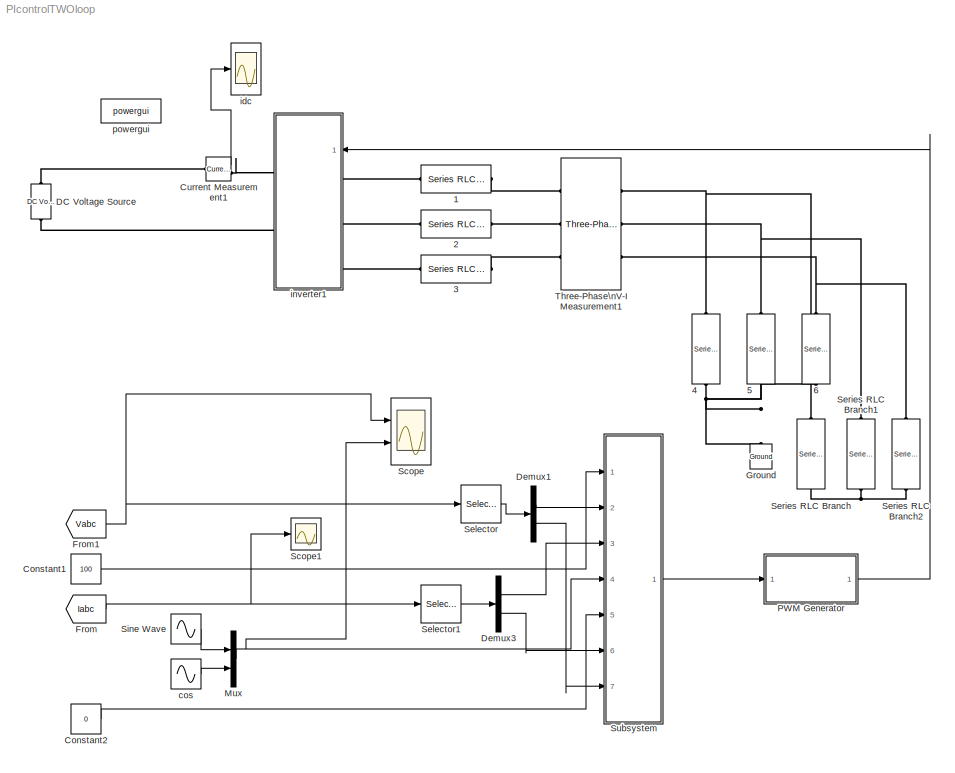
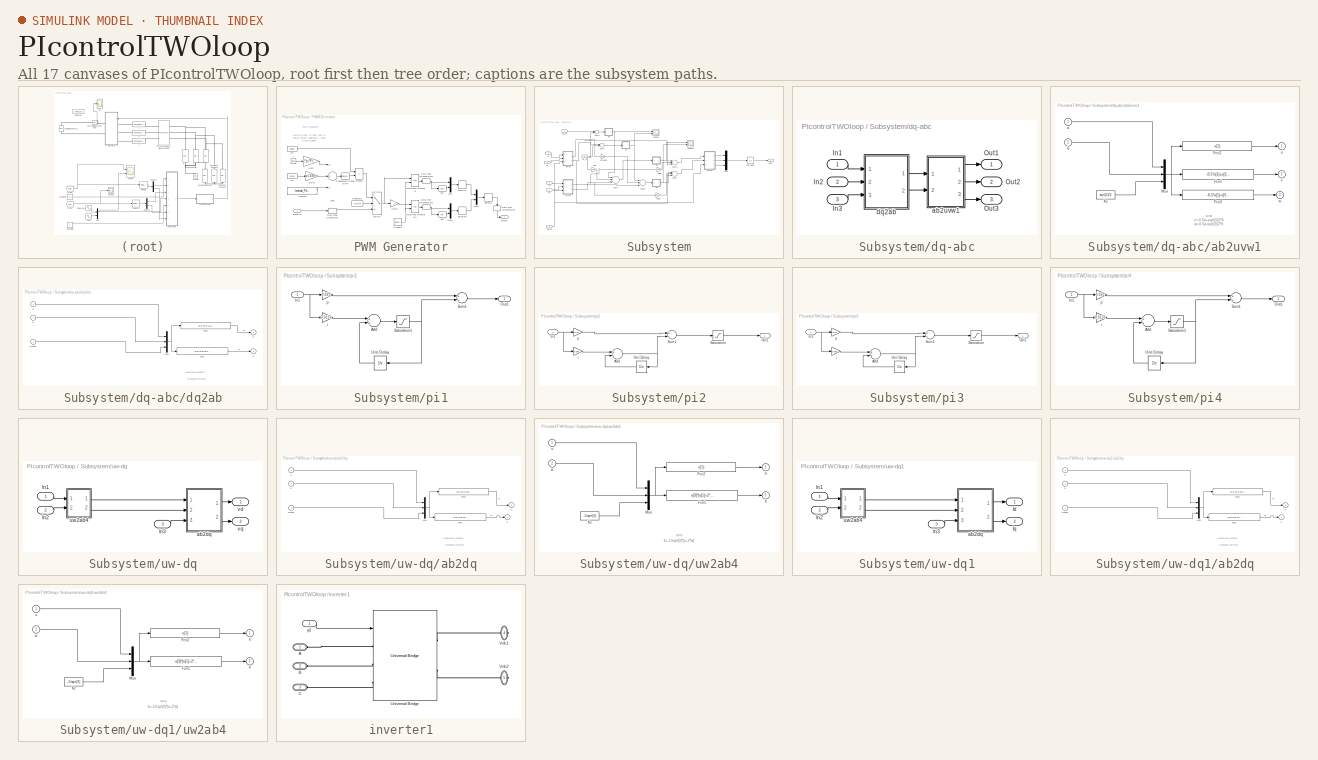
[diagram: thumbnail index - all 17 canvases of the model, root first then tree order]
MODEL PIcontrolTWOloop
KIND model
BLOCK [Reference] 1  REF=powerlib/Elements/Series RLC Branch
  BranchType = L
  Capacitance = 1e-6
  Inductance = 2.7e-3
  InitialCurrent = 0
  InitialVoltage = 0
  LConnTagsString = __new0
  Measurements = None
  Ports = [0, 0, 0, 0, 0, 1, 1]
  RConnTagsString = __new0
  Resistance = 1.0
  SID = 1
  SetiL0 = off
  Setx0 = off
  SourceBlock = powerlib/Elements/Series RLC Branch
  SourceType = Series RLC Branch
BLOCK [Reference] 2  REF=powerlib/Elements/Series RLC Branch
  BranchType = L
  Capacitance = 1e-6
  Inductance = 2.7e-3
  InitialCurrent = 0
  InitialVoltage = 0
  LConnTagsString = __new0
  Measurements = None
  Ports = [0, 0, 0, 0, 0, 1, 1]
  RConnTagsString = __new0
  Resistance = 1.0
  SID = 2
  SetiL0 = off
  Setx0 = off
  SourceBlock = powerlib/Elements/Series RLC Branch
  SourceType = Series RLC Branch
BLOCK [Reference] 3  REF=powerlib/Elements/Series RLC Branch
  BranchType = L
  Capacitance = 1e-6
  Inductance = 2.7e-3
  InitialCurrent = 0
  InitialVoltage = 0
  LConnTagsString = __new0
  Measurements = None
  Ports = [0, 0, 0, 0, 0, 1, 1]
  RConnTagsString = __new0
  Resistance = 1.0
  SID = 3
  SetiL0 = off
  Setx0 = off
  SourceBlock = powerlib/Elements/Series RLC Branch
  SourceType = Series RLC Branch
BLOCK [Reference] 4  REF=powerlib/Elements/Series RLC Branch
  BranchType = C
  Capacitance = 15e-6
  Inductance = 8e-3
  InitialCurrent = 0
  InitialVoltage = 0
  LConnTagsString = __new0
  Measurements = None
  Ports = [0, 0, 0, 0, 0, 1, 1]
  RConnTagsString = __new0
  Resistance = 0.5
  SID = 4
  SetiL0 = off
  Setx0 = off
  SourceBlock = powerlib/Elements/Series RLC Branch
  SourceType = Series RLC Branch
BLOCK [Reference] 5  REF=powerlib/Elements/Series RLC Branch
  BranchType = C
  Capacitance = 15e-6
  Inductance = 8e-3
  InitialCurrent = 0
  InitialVoltage = 0
  LConnTagsString = __new0
  Measurements = None
  Ports = [0, 0, 0, 0, 0, 1, 1]
  RConnTagsString = __new0
  Resistance = 0.5
  SID = 5
  SetiL0 = off
  Setx0 = off
  SourceBlock = powerlib/Elements/Series RLC Branch
  SourceType = Series RLC Branch
BLOCK [Reference] 6  REF=powerlib/Elements/Series RLC Branch
  BranchType = C
  Capacitance = 15e-6
  Inductance = 8e-3
  InitialCurrent = 0
  InitialVoltage = 0
  LConnTagsString = __new0
  Measurements = None
  Ports = [0, 0, 0, 0, 0, 1, 1]
  RConnTagsString = __new0
  Resistance = 0.5
  SID = 6
  SetiL0 = off
  Setx0 = off
  SourceBlock = powerlib/Elements/Series RLC Branch
  SourceType = Series RLC Branch
BLOCK [Constant] Constant1
  OutDataTypeStr = single
  SID = 7
  SampleTime = 1e-4
  Value = 100
BLOCK [Constant] Constant2
  OutDataTypeStr = single
  SID = 8
  SampleTime = 1e-4
  Value = 0
BLOCK [Reference] Current Measurement1  REF=powerlib/Measurements/Current Measurement
  OutputType = Complex
  PSBequivalent = 0
  PhasorSimulation = off
  Ports = [0, 1, 0, 0, 0, 1, 1]
  SID = 9
  SourceBlock = powerlib/Measurements/Current Measurement
  SourceType = Current Measurement
BLOCK [Reference] DC Voltage Source  REF=powerlib/Electrical\nSources/DC Voltage Source
  Amplitude = 520
  Measurements = None
  Ports = [0, 0, 0, 0, 0, 1, 1]
  SID = 10
  SourceBlock = powerlib/Electrical\nSources/DC Voltage Source
  SourceType = DC Voltage Source
BLOCK [Demux] Demux1
  DisplayOption = bar
  Outputs = 2
  Ports = [1, 2]
  SID = 11
BLOCK [Demux] Demux3
  DisplayOption = bar
  Outputs = 2
  Ports = [1, 2]
  SID = 12
BLOCK [From] From
  GotoTag = Iabc
  IconDisplay = Tag and signal name
  SID = 13
  TagVisibility = global
BLOCK [From] From1
  GotoTag = Vabc
  IconDisplay = Tag and signal name
  SID = 14
  TagVisibility = global
BLOCK [Reference] Ground  REF=powerlib/Elements/Ground
  LConnTagsString = a
  Ports = [0, 0, 0, 0, 0, 1]
  SID = 15
  SourceBlock = powerlib/Elements/Ground
  SourceType = Ground
BLOCK [Mux] Mux
  DisplayOption = bar
  Inputs = 2
  Ports = [2, 1]
  SID = 16
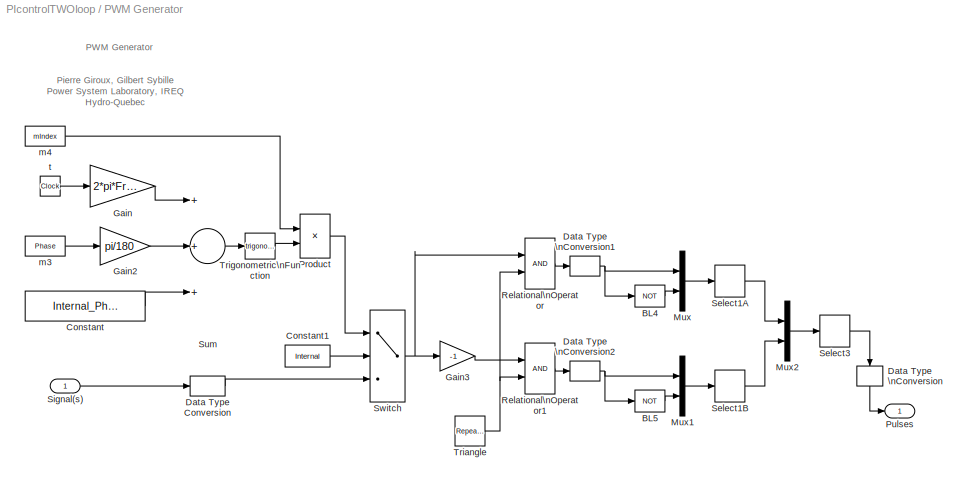
BLOCK [SubSystem] PWM Generator
  AncestorBlock = powerlib_extras/Control \nBlocks/PWM Generator
  DialogController = POWERSYS.PowerSysDialog
  FunctionWithSeparateData = off
  MaskCallbackString = |||||
  MaskDescription = This block generates pulses for carrier-based PWM (Pulse Width Modulation), self-commutated IGBTs,GTOs or FETs bridges.\n\nDepending on the number of bridge arms selected in the \"Generator Mode\" parameter, the block can be used either for single-phase or three-phase PWM control.\n
  MaskDisplay = disp('')
  MaskEnableString = on,on,on,on,on,on
  MaskHelp = web(psbhelp)
  MaskHideContents = off
  MaskIconFrame = on
  MaskIconOpaque = off
  MaskIconRotate = none
  MaskIconUnits = autoscale
  MaskInitialization = powericon('psbcallbacks',gcb,'PWM Generator');\nif Freq==0\n    Phase=90;\nend\nswitch GeneratorMode\ncase 1,\n    Internal_Phase=0;\n   Signal_PortWidth=1;\n   Select1_Elements=[1 2];\n   Select1_PortWidth=2;\n   Select3_Elements=[1 2];\n   Select3_PortWidth=4;\ncase 2,\n    Internal_Phase=0;\n    Signal_PortWidth=1;\n    Select1_Elements=[1 2];\n    Select1_PortWidth=2;\n    Select3_Elements=[1 ...<+470ch>
  MaskPortRotate = default
  MaskPromptString = Generator Mode|Carrier frequency (Hz):|Internal generation of modulating signal(s)|Modulation index  (0<m<1) :|Frequency of output voltage (Hz)|Phase of output voltage (degrees)
  MaskSelfModifiable = on
  MaskStyleString = popup(1-arm  bridge (2 pulses)|2-arm  bridge (4 pulses)|3-arm  bridge (6 pulses)|Double 3-arm  bridges (12 pulses)),edit,checkbox,edit,edit,edit
  MaskToolTipString = on,on,on,on,on,on
  MaskTunableValueString = on,on,on,on,on,on
  MaskType = PWM Generator
  MaskValueString = 3-arm  bridge (6 pulses)|10000|off|0.4|60|0
  MaskVariables = GeneratorMode=@1;Fc=@2;Internal=@3;mIndex=@4;Freq=@5;Phase=@6;
  MaskVisibilityString = on,on,on,off,off,off
  MinAlgLoopOccurrences = off
  Opaque = off
  Ports = [1, 1]
  PropExecContextOutsideSubsystem = off
  RTWSystemCode = Auto
  RequestExecContextInheritance = off
  SID = 336
BLOCK [Logic] PWM Generator/BL4
  Inputs = 1
  Operator = NOT
  Ports = [1, 1]
  SID = 336:2
BLOCK [Logic] PWM Generator/BL5
  Inputs = 1
  Operator = NOT
  Ports = [1, 1]
  SID = 336:3
BLOCK [Constant] PWM Generator/Constant
  SID = 336:4
  Value = Internal_Phase
BLOCK [Constant] PWM Generator/Constant1
  SID = 336:5
  Value = Internal
BLOCK [DataTypeConversion] PWM Generator/Data Type Conversion
  OutDataTypeStr = double
  RndMeth = Floor
  SID = 336:29
  SaturateOnIntegerOverflow = off
BLOCK [DataTypeConversion] PWM Generator/Data Type \nConversion
  OutDataTypeStr = double
  SID = 336:6
BLOCK [DataTypeConversion] PWM Generator/Data Type \nConversion1
  OutDataTypeStr = boolean
  SID = 336:7
BLOCK [DataTypeConversion] PWM Generator/Data Type \nConversion2
  OutDataTypeStr = boolean
  SID = 336:8
BLOCK [Gain] PWM Generator/Gain
  Gain = 2*pi*Freq
  SID = 336:9
BLOCK [Gain] PWM Generator/Gain2
  Gain = pi/180
  SID = 336:10
BLOCK [Gain] PWM Generator/Gain3
  Gain = -1
  SID = 336:11
BLOCK [Mux] PWM Generator/Mux
  DisplayOption = bar
  Inputs = 2
  Ports = [2, 1]
  SID = 336:12
BLOCK [Mux] PWM Generator/Mux1
  DisplayOption = bar
  Inputs = 2
  Ports = [2, 1]
  SID = 336:13
BLOCK [Mux] PWM Generator/Mux2
  DisplayOption = bar
  Inputs = 2
  Ports = [2, 1]
  SID = 336:14
BLOCK [Product] PWM Generator/Product
  Ports = [2, 1]
  RndMeth = Floor
  SID = 336:15
BLOCK [Outport] PWM Generator/Pulses
  IconDisplay = Port number
  SID = 336:28
BLOCK [RelationalOperator] PWM Generator/Relational\nOperator
  Ports = [2, 1]
  SID = 336:16
BLOCK [RelationalOperator] PWM Generator/Relational\nOperator1
  Ports = [2, 1]
  SID = 336:17
BLOCK [Selector] PWM Generator/Select1A
  IndexOptions = Index vector (dialog)
  Indices = Select1_Elements
  InputPortWidth = Select1_PortWidth
  OutputSizes = 1
  Ports = [1, 1]
  SID = 336:18
BLOCK [Selector] PWM Generator/Select1B
  IndexOptions = Index vector (dialog)
  Indices = Select1_Elements
  InputPortWidth = Select1_PortWidth
  OutputSizes = 1
  Ports = [1, 1]
  SID = 336:19
BLOCK [Selector] PWM Generator/Select3
  IndexOptions = Index vector (dialog)
  Indices = Select3_Elements
  InputPortWidth = Select3_PortWidth
  OutputSizes = 1
  Ports = [1, 1]
  SID = 336:20
BLOCK [Inport] PWM Generator/Signal(s)
  IconDisplay = Port number
  SID = 336:1
BLOCK [Sum] PWM Generator/Sum
  Inputs = +++
  Ports = [3, 1]
  SID = 336:21
BLOCK [Switch] PWM Generator/Switch
  SID = 336:22
  SaturateOnIntegerOverflow = off
  Threshold = 0.5
BLOCK [Reference] PWM Generator/Triangle  REF=simulink/Sources/Repeating\nSequence
  Ports = [0, 1]
  SID = 336:23
  SourceBlock = simulink/Sources/Repeating\nSequence
  SourceType = Repeating table
  rep_seq_t = [0 1/Fc/4 3/Fc/4 1/Fc]
  rep_seq_y = [0 -260 260 0]
BLOCK [Trigonometry] PWM Generator/Trigonometric\nFunction
  Ports = [1, 1]
  SID = 336:24
BLOCK [Constant] PWM Generator/m3
  SID = 336:25
  Value = Phase
BLOCK [Constant] PWM Generator/m4
  SID = 336:26
  Value = mIndex
BLOCK [Clock] PWM Generator/t
  SID = 336:27
BLOCK [Scope] Scope
  DataFormat = StructureWithTime
  Floating = off
  LimitDataPoints = off
  NumInputPorts = 2
  Ports = [2]
  SID = 18
  SampleTime = 0
  SaveToWorkspace = on
  ShowLegends = off
  TimeRange = 0.1
  YMax = 110~1.25
  YMin = -110~-1.25
  ZoomMode = xonly
BLOCK [Scope] Scope1
  DataFormat = StructureWithTime
  Floating = off
  LimitDataPoints = off
  NumInputPorts = 1
  Ports = [1]
  SID = 19
  SampleTime = 0
  SaveName = ScopeData1
  SaveToWorkspace = on
  ShowLegends = off
  TimeRange = 0.1
  YMax = 1.5
  YMin = -1.75
  ZoomMode = xonly
BLOCK [Selector] Selector
  IndexOptions = Index vector (dialog)
  Indices = [1 3]
  InputPortWidth = 3
  OutputSizes = 1
  Ports = [1, 1]
  SID = 20
BLOCK [Selector] Selector1
  IndexOptions = Index vector (dialog)
  Indices = [1 3]
  InputPortWidth = 3
  OutputSizes = 1
  Ports = [1, 1]
  SID = 21
BLOCK [Reference] Series RLC Branch  REF=powerlib/Elements/Series RLC Branch
  BranchType = R
  Capacitance = 1e-6
  Inductance = 1e-3
  InitialCurrent = 0
  InitialVoltage = 0
  LConnTagsString = __new0
  Measurements = None
  Ports = [0, 0, 0, 0, 0, 1, 1]
  RConnTagsString = __new0
  Resistance = 12
  SID = 22
  SetiL0 = off
  Setx0 = off
  SourceBlock = powerlib/Elements/Series RLC Branch
  SourceType = Series RLC Branch
BLOCK [Reference] Series RLC Branch1  REF=powerlib/Elements/Series RLC Branch
  BranchType = R
  Capacitance = 1e-6
  Inductance = 1e-3
  InitialCurrent = 0
  InitialVoltage = 0
  LConnTagsString = __new0
  Measurements = None
  Ports = [0, 0, 0, 0, 0, 1, 1]
  RConnTagsString = __new0
  Resistance = 12
  SID = 23
  SetiL0 = off
  Setx0 = off
  SourceBlock = powerlib/Elements/Series RLC Branch
  SourceType = Series RLC Branch
BLOCK [Reference] Series RLC Branch2  REF=powerlib/Elements/Series RLC Branch
  BranchType = R
  Capacitance = 1e-6
  Inductance = 1e-3
  InitialCurrent = 0
  InitialVoltage = 0
  LConnTagsString = __new0
  Measurements = None
  Ports = [0, 0, 0, 0, 0, 1, 1]
  RConnTagsString = __new0
  Resistance = 12
  SID = 24
  SetiL0 = off
  Setx0 = off
  SourceBlock = powerlib/Elements/Series RLC Branch
  SourceType = Series RLC Branch
BLOCK [Sin] Sine Wave
  Frequency = 2*pi*50
  Ports = [0, 1]
  SID = 25
  SampleTime = 1e-4
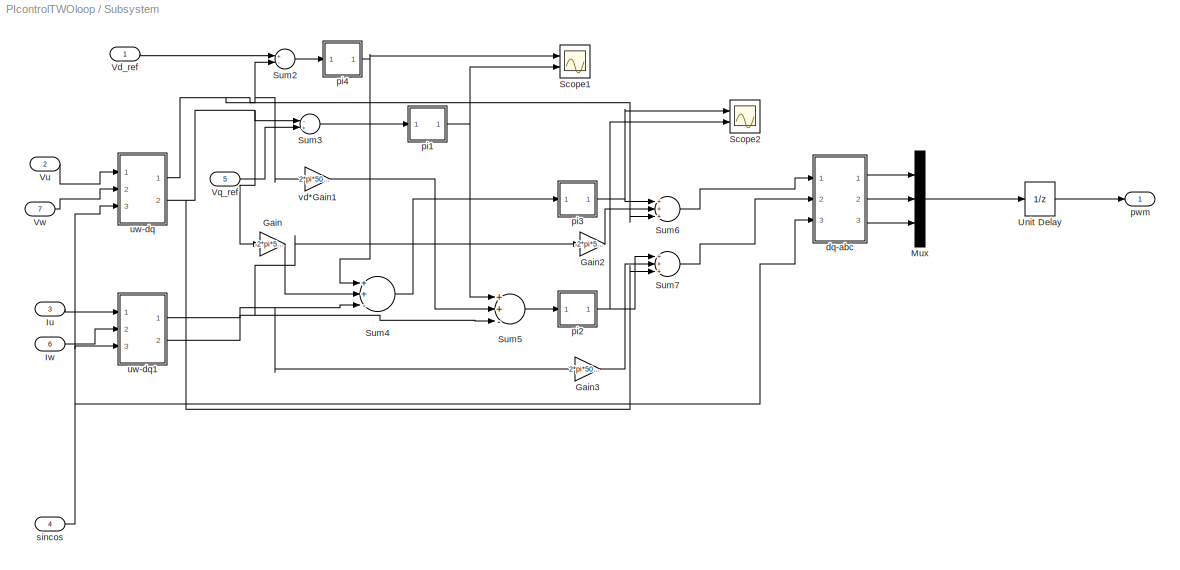
BLOCK [SubSystem] Subsystem
  FunctionWithSeparateData = off
  MaskHideContents = off
  MinAlgLoopOccurrences = off
  Opaque = off
  Ports = [7, 1]
  PropExecContextOutsideSubsystem = off
  RTWSystemCode = Auto
  RequestExecContextInheritance = off
  SID = 26
BLOCK [Gain] Subsystem/Gain
  Gain = -2*pi*50*15e-6
  OutDataTypeStr = Inherit: Inherit via internal rule
  ParamDataTypeStr = Inherit: Inherit via internal rule
  SID = 34
  SaturateOnIntegerOverflow = off
BLOCK [Gain] Subsystem/Gain2
  Gain = -2*pi*50*2.7e-3
  OutDataTypeStr = Inherit: Inherit via internal rule
  ParamDataTypeStr = Inherit: Inherit via internal rule
  SID = 36
  SaturateOnIntegerOverflow = off
BLOCK [Gain] Subsystem/Gain3
  Gain = 2*pi*50*2.7e-3
  OutDataTypeStr = Inherit: Inherit via internal rule
  ParamDataTypeStr = Inherit: Inherit via internal rule
  SID = 37
  SaturateOnIntegerOverflow = off
BLOCK [Inport] Subsystem/Iu
  IconDisplay = Port number
  Port = 3
  SID = 29
BLOCK [Inport] Subsystem/Iw
  IconDisplay = Port number
  Port = 6
  SID = 32
BLOCK [Mux] Subsystem/Mux
  DisplayOption = bar
  Inputs = 3
  Ports = [3, 1]
  SID = 39
BLOCK [Scope] Subsystem/Scope1
  DataFormat = StructureWithTime
  Floating = off
  LimitDataPoints = off
  NumInputPorts = 2
  Ports = [2]
  SID = 40
  SampleTime = 0
  SaveName = ScopeData2
  SaveToWorkspace = on
  ShowLegends = off
  TimeRange = 0.1
  YMax = 78~1.7
  YMin = 62~0.2
  ZoomMode = xonly
BLOCK [Scope] Subsystem/Scope2
  DataFormat = StructureWithTime
  Floating = off
  LimitDataPoints = off
  NumInputPorts = 2
  Ports = [2]
  SID = 41
  SampleTime = 0
  SaveName = ScopeData3
  SaveToWorkspace = on
  ShowLegends = off
  TimeRange = 0.1
  YMax = 15~5
  YMin = -17.5~-5
  ZoomMode = yonly
BLOCK [Sum] Subsystem/Sum2
  InputSameDT = off
  Inputs = +-
  OutDataTypeStr = Inherit: Inherit via internal rule
  Ports = [2, 1]
  SID = 132
  SaturateOnIntegerOverflow = off
BLOCK [Sum] Subsystem/Sum3
  InputSameDT = off
  Inputs = -+
  OutDataTypeStr = Inherit: Inherit via internal rule
  Ports = [2, 1]
  SID = 133
  SaturateOnIntegerOverflow = off
BLOCK [Sum] Subsystem/Sum4
  InputSameDT = off
  Inputs = ++-
  OutDataTypeStr = Inherit: Inherit via internal rule
  Ports = [3, 1]
  SID = 134
  SaturateOnIntegerOverflow = off
BLOCK [Sum] Subsystem/Sum5
  InputSameDT = off
  Inputs = ++-
  OutDataTypeStr = Inherit: Inherit via internal rule
  Ports = [3, 1]
  SID = 135
  SaturateOnIntegerOverflow = off
BLOCK [Sum] Subsystem/Sum6
  InputSameDT = off
  Inputs = +++
  OutDataTypeStr = Inherit: Inherit via internal rule
  Ports = [3, 1]
  SID = 136
  SaturateOnIntegerOverflow = off
BLOCK [Sum] Subsystem/Sum7
  InputSameDT = off
  Inputs = +++
  OutDataTypeStr = Inherit: Inherit via internal rule
  Ports = [3, 1]
  SID = 137
  SaturateOnIntegerOverflow = off
BLOCK [UnitDelay] Subsystem/Unit Delay
  SID = 271
  SampleTime = -1
BLOCK [Inport] Subsystem/Vd_ref
  IconDisplay = Port number
  SID = 27
BLOCK [Inport] Subsystem/Vq_ref
  IconDisplay = Port number
  Port = 5
  SID = 31
BLOCK [Inport] Subsystem/Vu
  IconDisplay = Port number
  Port = 2
  SID = 28
BLOCK [Inport] Subsystem/Vw
  IconDisplay = Port number
  Port = 7
  SID = 33
BLOCK [SubSystem] Subsystem/dq-abc
  FunctionWithSeparateData = off
  MaskHideContents = off
  MinAlgLoopOccurrences = off
  Opaque = off
  Ports = [3, 3]
  PropExecContextOutsideSubsystem = off
  RTWSystemCode = Auto
  RequestExecContextInheritance = off
  SID = 105
BLOCK [Inport] Subsystem/dq-abc/In1
  IconDisplay = Port number
  SID = 106
BLOCK [Inport] Subsystem/dq-abc/In2
  IconDisplay = Port number
  Port = 2
  SID = 107
BLOCK [Inport] Subsystem/dq-abc/In3
  IconDisplay = Port number
  Port = 3
  SID = 108
BLOCK [Outport] Subsystem/dq-abc/Out1
  IconDisplay = Port number
  SID = 129
BLOCK [Outport] Subsystem/dq-abc/Out2
  IconDisplay = Port number
  Port = 2
  SID = 130
BLOCK [Outport] Subsystem/dq-abc/Out3
  IconDisplay = Port number
  Port = 3
  SID = 131
BLOCK [SubSystem] Subsystem/dq-abc/ab2uvw1
  FunctionWithSeparateData = off
  MaskHideContents = off
  MinAlgLoopOccurrences = off
  Opaque = off
  Ports = [2, 3]
  PropExecContextOutsideSubsystem = off
  RTWSystemCode = Auto
  RequestExecContextInheritance = off
  SID = 109
BLOCK [Fcn] Subsystem/dq-abc/ab2uvw1/Fcn1
  Expr = -0.5*u[1]+u[3]*u[2]
  SID = 112
BLOCK [Fcn] Subsystem/dq-abc/ab2uvw1/Fcn2
  Expr = u[1]
  SID = 113
BLOCK [Fcn] Subsystem/dq-abc/ab2uvw1/Fcn3
  Expr = -0.5*u[1]-u[3]*u[2]
  SID = 114
BLOCK [Constant] Subsystem/dq-abc/ab2uvw1/K2
  OutDataTypeStr = double
  SID = 115
  Value = sqrt(3)/2
BLOCK [Mux] Subsystem/dq-abc/ab2uvw1/Mux
  DisplayOption = bar
  Inputs = 3
  Ports = [3, 1]
  SID = 116
BLOCK [Inport] Subsystem/dq-abc/ab2uvw1/a
  IconDisplay = Port number
  OutDataTypeStr = double
  PortDimensions = 1
  SID = 110
BLOCK [Inport] Subsystem/dq-abc/ab2uvw1/b
  IconDisplay = Port number
  OutDataTypeStr = double
  Port = 2
  PortDimensions = 1
  SID = 111
BLOCK [Outport] Subsystem/dq-abc/ab2uvw1/u
  IconDisplay = Port number
  InitialOutput = 0
  SID = 117
BLOCK [Outport] Subsystem/dq-abc/ab2uvw1/v
  IconDisplay = Port number
  InitialOutput = 0
  Port = 2
  SID = 118
BLOCK [Outport] Subsystem/dq-abc/ab2uvw1/w
  IconDisplay = Port number
  InitialOutput = 0
  Port = 3
  SID = 119
BLOCK [SubSystem] Subsystem/dq-abc/dq2ab
  FunctionWithSeparateData = off
  MaskHideContents = off
  MinAlgLoopOccurrences = off
  Opaque = off
  Ports = [3, 2]
  PropExecContextOutsideSubsystem = off
  RTWSystemCode = Auto
  RequestExecContextInheritance = off
  SID = 120
BLOCK [Fcn] Subsystem/dq-abc/dq2ab/Fcn1
  Expr = u[1]*u[3]+u[2]*u[4]
  SID = 124
BLOCK [Fcn] Subsystem/dq-abc/dq2ab/Fcn2
  Expr = u[1]*u[4]-u[2]*u[3]
  SID = 125
BLOCK [Mux] Subsystem/dq-abc/dq2ab/Mux
  DisplayOption = bar
  Inputs = 3
  Ports = [3, 1]
  SID = 126
BLOCK [Outport] Subsystem/dq-abc/dq2ab/a
  IconDisplay = Port number
  InitialOutput = 0
  SID = 127
BLOCK [Outport] Subsystem/dq-abc/dq2ab/b
  IconDisplay = Port number
  InitialOutput = 0
  Port = 2
  SID = 128
BLOCK [Inport] Subsystem/dq-abc/dq2ab/d
  IconDisplay = Port number
  PortDimensions = 1
  SID = 121
BLOCK [Inport] Subsystem/dq-abc/dq2ab/q
  IconDisplay = Port number
  Port = 2
  PortDimensions = 1
  SID = 122
BLOCK [Inport] Subsystem/dq-abc/dq2ab/sincos
  IconDisplay = Port number
  Port = 3
  PortDimensions = 2
  SID = 123
BLOCK [SubSystem] Subsystem/pi1
  FunctionWithSeparateData = off
  MaskHideContents = off
  MinAlgLoopOccurrences = off
  Opaque = off
  Ports = [1, 1]
  PropExecContextOutsideSubsystem = off
  RTWSystemCode = Auto
  RequestExecContextInheritance = off
  SID = 327
BLOCK [Sum] Subsystem/pi1/Add
  AccumDataTypeStr = single
  InputSameDT = off
  OutDataTypeStr = single
  Ports = [2, 1]
  RndMeth = Nearest
  SID = 329
  SaturateOnIntegerOverflow = off
BLOCK [Inport] Subsystem/pi1/In1
  IconDisplay = Port number
  SID = 328
BLOCK [Outport] Subsystem/pi1/Out1
  IconDisplay = Port number
  SID = 335
BLOCK [Saturate] Subsystem/pi1/Saturation1
  InputPortMap = u0
  LinearizeAsGain = off
  LowerLimit = -20
  Ports = [1, 1]
  SID = 330
  UpperLimit = 20
  ZeroCross = off
BLOCK [Sum] Subsystem/pi1/Sum1
  AccumDataTypeStr = Inherit: Same as first input
  InputSameDT = off
  OutDataTypeStr = Inherit: Inherit via internal rule
  Ports = [2, 1]
  SID = 331
  SaturateOnIntegerOverflow = off
BLOCK [UnitDelay] Subsystem/pi1/Unit Delay
  SID = 332
  SampleTime = 1e-4
BLOCK [Gain] Subsystem/pi1/i
  Gain = 0.0131
  OutDataTypeStr = single
  ParamDataTypeStr = Inherit: Inherit via internal rule
  RndMeth = Nearest
  SID = 333
  SaturateOnIntegerOverflow = off
BLOCK [Gain] Subsystem/pi1/p
  Gain = 0.021
  OutDataTypeStr = single
  ParamDataTypeStr = Inherit: Inherit via internal rule
  RndMeth = Nearest
  SID = 334
  SaturateOnIntegerOverflow = off
BLOCK [SubSystem] Subsystem/pi2
  FunctionWithSeparateData = off
  MaskHideContents = off
  MinAlgLoopOccurrences = off
  Opaque = off
  Ports = [1, 1]
  PropExecContextOutsideSubsystem = off
  RTWSystemCode = Auto
  RequestExecContextInheritance = off
  SID = 318
BLOCK [Sum] Subsystem/pi2/Add
  AccumDataTypeStr = single
  InputSameDT = off
  OutDataTypeStr = single
  Ports = [2, 1]
  RndMeth = Nearest
  SID = 320
  SaturateOnIntegerOverflow = off
BLOCK [Inport] Subsystem/pi2/In1
  IconDisplay = Port number
  SID = 319
BLOCK [Outport] Subsystem/pi2/Out1
  IconDisplay = Port number
  SID = 326
BLOCK [Saturate] Subsystem/pi2/Saturation
  InputPortMap = u0
  LinearizeAsGain = off
  LowerLimit = -300
  Ports = [1, 1]
  SID = 321
  UpperLimit = 300
  ZeroCross = off
BLOCK [Sum] Subsystem/pi2/Sum1
  AccumDataTypeStr = Inherit: Same as first input
  InputSameDT = off
  OutDataTypeStr = Inherit: Inherit via internal rule
  Ports = [2, 1]
  SID = 322
  SaturateOnIntegerOverflow = off
BLOCK [UnitDelay] Subsystem/pi2/Unit Delay
  SID = 323
  SampleTime = 1e-4
BLOCK [Gain] Subsystem/pi2/i
  Gain = 0.586
  OutDataTypeStr = single
  ParamDataTypeStr = Inherit: Inherit via internal rule
  RndMeth = Nearest
  SID = 324
  SaturateOnIntegerOverflow = off
BLOCK [Gain] Subsystem/pi2/p
  Gain = 9.37
  OutDataTypeStr = single
  ParamDataTypeStr = Inherit: Inherit via internal rule
  RndMeth = Nearest
  SID = 325
  SaturateOnIntegerOverflow = off
BLOCK [SubSystem] Subsystem/pi3
  FunctionWithSeparateData = off
  MaskHideContents = off
  MinAlgLoopOccurrences = off
  Opaque = off
  Ports = [1, 1]
  PropExecContextOutsideSubsystem = off
  RTWSystemCode = Auto
  RequestExecContextInheritance = off
  SID = 300
BLOCK [Sum] Subsystem/pi3/Add
  AccumDataTypeStr = single
  InputSameDT = off
  OutDataTypeStr = single
  Ports = [2, 1]
  RndMeth = Nearest
  SID = 302
  SaturateOnIntegerOverflow = off
BLOCK [Inport] Subsystem/pi3/In1
  IconDisplay = Port number
  SID = 301
BLOCK [Outport] Subsystem/pi3/Out1
  IconDisplay = Port number
  SID = 308
BLOCK [Saturate] Subsystem/pi3/Saturation
  InputPortMap = u0
  LinearizeAsGain = off
  LowerLimit = -300
  Ports = [1, 1]
  SID = 303
  UpperLimit = 300
  ZeroCross = off
BLOCK [Sum] Subsystem/pi3/Sum1
  AccumDataTypeStr = Inherit: Same as first input
  InputSameDT = off
  OutDataTypeStr = Inherit: Inherit via internal rule
  Ports = [2, 1]
  SID = 304
  SaturateOnIntegerOverflow = off
BLOCK [UnitDelay] Subsystem/pi3/Unit Delay
  SID = 305
  SampleTime = 1e-4
BLOCK [Gain] Subsystem/pi3/i
  Gain = 0.586
  OutDataTypeStr = single
  ParamDataTypeStr = Inherit: Inherit via internal rule
  RndMeth = Nearest
  SID = 306
  SaturateOnIntegerOverflow = off
BLOCK [Gain] Subsystem/pi3/p
  Gain = 9.37
  OutDataTypeStr = single
  ParamDataTypeStr = Inherit: Inherit via internal rule
  RndMeth = Nearest
  SID = 307
  SaturateOnIntegerOverflow = off
BLOCK [SubSystem] Subsystem/pi4
  FunctionWithSeparateData = off
  MaskHideContents = off
  MinAlgLoopOccurrences = off
  Opaque = off
  Ports = [1, 1]
  PropExecContextOutsideSubsystem = off
  RTWSystemCode = Auto
  RequestExecContextInheritance = off
  SID = 231
BLOCK [Sum] Subsystem/pi4/Add
  AccumDataTypeStr = single
  InputSameDT = off
  OutDataTypeStr = single
  Ports = [2, 1]
  RndMeth = Nearest
  SID = 233
  SaturateOnIntegerOverflow = off
BLOCK [Inport] Subsystem/pi4/In1
  IconDisplay = Port number
  SID = 232
BLOCK [Outport] Subsystem/pi4/Out1
  IconDisplay = Port number
  SID = 239
BLOCK [Saturate] Subsystem/pi4/Saturation1
  InputPortMap = u0
  LinearizeAsGain = off
  LowerLimit = -20
  Ports = [1, 1]
  SID = 249
  UpperLimit = 20
  ZeroCross = off
BLOCK [Sum] Subsystem/pi4/Sum1
  AccumDataTypeStr = Inherit: Same as first input
  InputSameDT = off
  OutDataTypeStr = Inherit: Inherit via internal rule
  Ports = [2, 1]
  SID = 235
  SaturateOnIntegerOverflow = off
BLOCK [UnitDelay] Subsystem/pi4/Unit Delay
  SID = 236
  SampleTime = 1e-4
BLOCK [Gain] Subsystem/pi4/i
  Gain = 0.0131
  OutDataTypeStr = single
  ParamDataTypeStr = Inherit: Inherit via internal rule
  RndMeth = Nearest
  SID = 237
  SaturateOnIntegerOverflow = off
BLOCK [Gain] Subsystem/pi4/p
  Gain = 0.021
  OutDataTypeStr = single
  ParamDataTypeStr = Inherit: Inherit via internal rule
  RndMeth = Nearest
  SID = 238
  SaturateOnIntegerOverflow = off
BLOCK [Outport] Subsystem/pwm
  IconDisplay = Port number
  SID = 175
BLOCK [Inport] Subsystem/sincos
  IconDisplay = Port number
  Port = 4
  SID = 30
BLOCK [SubSystem] Subsystem/uw-dq
  FunctionWithSeparateData = off
  MaskHideContents = off
  MinAlgLoopOccurrences = off
  Opaque = off
  Ports = [3, 2]
  PropExecContextOutsideSubsystem = off
  RTWSystemCode = Auto
  RequestExecContextInheritance = off
  SID = 57
BLOCK [Inport] Subsystem/uw-dq/In1
  IconDisplay = Port number
  SID = 58
BLOCK [Inport] Subsystem/uw-dq/In2
  IconDisplay = Port number
  Port = 2
  SID = 59
BLOCK [Inport] Subsystem/uw-dq/In3
  IconDisplay = Port number
  Port = 3
  SID = 60
BLOCK [SubSystem] Subsystem/uw-dq/ab2dq
  FunctionWithSeparateData = off
  MaskHideContents = off
  MinAlgLoopOccurrences = off
  Opaque = off
  Ports = [3, 2]
  PropExecContextOutsideSubsystem = off
  RTWSystemCode = Auto
  RequestExecContextInheritance = off
  SID = 61
BLOCK [Fcn] Subsystem/uw-dq/ab2dq/Fcn1
  Expr = -u[1]*u[3]+u[2]*u[4]
  SID = 65
BLOCK [Fcn] Subsystem/uw-dq/ab2dq/Fcn2
  Expr = u[1]*u[4]+u[2]*u[3]
  SID = 66
BLOCK [Mux] Subsystem/uw-dq/ab2dq/Mux
  DisplayOption = bar
  Inputs = 3
  Ports = [3, 1]
  SID = 67
BLOCK [Inport] Subsystem/uw-dq/ab2dq/a
  IconDisplay = Port number
  PortDimensions = 1
  SID = 62
BLOCK [Inport] Subsystem/uw-dq/ab2dq/b
  IconDisplay = Port number
  Port = 2
  PortDimensions = 1
  SID = 63
BLOCK [Outport] Subsystem/uw-dq/ab2dq/d
  IconDisplay = Port number
  InitialOutput = 0
  SID = 68
BLOCK [Outport] Subsystem/uw-dq/ab2dq/q
  IconDisplay = Port number
  InitialOutput = 0
  Port = 2
  SID = 69
BLOCK [Inport] Subsystem/uw-dq/ab2dq/sincos
  IconDisplay = Port number
  Port = 3
  PortDimensions = 2
  SID = 64
BLOCK [SubSystem] Subsystem/uw-dq/uw2ab4
  FunctionWithSeparateData = off
  MaskHideContents = off
  MinAlgLoopOccurrences = off
  Opaque = off
  Ports = [2, 2]
  PropExecContextOutsideSubsystem = off
  RTWSystemCode = Auto
  RequestExecContextInheritance = off
  SID = 70
BLOCK [Fcn] Subsystem/uw-dq/uw2ab4/Fcn1
  Expr = u[3]*(u[1]+2*u[2])
  SID = 73
BLOCK [Fcn] Subsystem/uw-dq/uw2ab4/Fcn2
  Expr = u[1]
  SID = 74
BLOCK [Constant] Subsystem/uw-dq/uw2ab4/K2
  OutDataTypeStr = double
  SID = 75
  Value = -1/sqrt(3)
BLOCK [Mux] Subsystem/uw-dq/uw2ab4/Mux
  DisplayOption = bar
  Inputs = 3
  Ports = [3, 1]
  SID = 76
BLOCK [Outport] Subsystem/uw-dq/uw2ab4/a
  IconDisplay = Port number
  InitialOutput = 0
  SID = 77
BLOCK [Outport] Subsystem/uw-dq/uw2ab4/b
  IconDisplay = Port number
  InitialOutput = 0
  Port = 2
  SID = 78
BLOCK [Inport] Subsystem/uw-dq/uw2ab4/u
  IconDisplay = Port number
  PortDimensions = 1
  SID = 71
BLOCK [Inport] Subsystem/uw-dq/uw2ab4/w
  IconDisplay = Port number
  Port = 2
  PortDimensions = 1
  SID = 72
BLOCK [Outport] Subsystem/uw-dq/vd
  IconDisplay = Port number
  SID = 79
BLOCK [Outport] Subsystem/uw-dq/vq
  IconDisplay = Port number
  Port = 2
  SID = 80
BLOCK [SubSystem] Subsystem/uw-dq1
  FunctionWithSeparateData = off
  MaskHideContents = off
  MinAlgLoopOccurrences = off
  Opaque = off
  Ports = [3, 2]
  PropExecContextOutsideSubsystem = off
  RTWSystemCode = Auto
  RequestExecContextInheritance = off
  SID = 81
BLOCK [Outport] Subsystem/uw-dq1/Id
  IconDisplay = Port number
  SID = 103
BLOCK [Inport] Subsystem/uw-dq1/In1
  IconDisplay = Port number
  SID = 82
BLOCK [Inport] Subsystem/uw-dq1/In2
  IconDisplay = Port number
  Port = 2
  SID = 83
BLOCK [Inport] Subsystem/uw-dq1/In3
  IconDisplay = Port number
  Port = 3
  SID = 84
BLOCK [Outport] Subsystem/uw-dq1/Iq
  IconDisplay = Port number
  Port = 2
  SID = 104
BLOCK [SubSystem] Subsystem/uw-dq1/ab2dq
  FunctionWithSeparateData = off
  MaskHideContents = off
  MinAlgLoopOccurrences = off
  Opaque = off
  Ports = [3, 2]
  PropExecContextOutsideSubsystem = off
  RTWSystemCode = Auto
  RequestExecContextInheritance = off
  SID = 85
BLOCK [Fcn] Subsystem/uw-dq1/ab2dq/Fcn1
  Expr = -u[1]*u[3]+u[2]*u[4]
  SID = 89
BLOCK [Fcn] Subsystem/uw-dq1/ab2dq/Fcn2
  Expr = u[1]*u[4]+u[2]*u[3]
  SID = 90
BLOCK [Mux] Subsystem/uw-dq1/ab2dq/Mux
  DisplayOption = bar
  Inputs = 3
  Ports = [3, 1]
  SID = 91
BLOCK [Inport] Subsystem/uw-dq1/ab2dq/a
  IconDisplay = Port number
  PortDimensions = 1
  SID = 86
BLOCK [Inport] Subsystem/uw-dq1/ab2dq/b
  IconDisplay = Port number
  Port = 2
  PortDimensions = 1
  SID = 87
BLOCK [Outport] Subsystem/uw-dq1/ab2dq/d
  IconDisplay = Port number
  InitialOutput = 0
  SID = 92
BLOCK [Outport] Subsystem/uw-dq1/ab2dq/q
  IconDisplay = Port number
  InitialOutput = 0
  Port = 2
  SID = 93
BLOCK [Inport] Subsystem/uw-dq1/ab2dq/sincos
  IconDisplay = Port number
  Port = 3
  PortDimensions = 2
  SID = 88
BLOCK [SubSystem] Subsystem/uw-dq1/uw2ab4
  FunctionWithSeparateData = off
  MaskHideContents = off
  MinAlgLoopOccurrences = off
  Opaque = off
  Ports = [2, 2]
  PropExecContextOutsideSubsystem = off
  RTWSystemCode = Auto
  RequestExecContextInheritance = off
  SID = 94
BLOCK [Fcn] Subsystem/uw-dq1/uw2ab4/Fcn1
  Expr = u[3]*(u[1]+2*u[2])
  SID = 97
BLOCK [Fcn] Subsystem/uw-dq1/uw2ab4/Fcn2
  Expr = u[1]
  SID = 98
BLOCK [Constant] Subsystem/uw-dq1/uw2ab4/K2
  OutDataTypeStr = double
  SID = 99
  Value = -1/sqrt(3)
BLOCK [Mux] Subsystem/uw-dq1/uw2ab4/Mux
  DisplayOption = bar
  Inputs = 3
  Ports = [3, 1]
  SID = 100
BLOCK [Outport] Subsystem/uw-dq1/uw2ab4/a
  IconDisplay = Port number
  InitialOutput = 0
  SID = 101
BLOCK [Outport] Subsystem/uw-dq1/uw2ab4/b
  IconDisplay = Port number
  InitialOutput = 0
  Port = 2
  SID = 102
BLOCK [Inport] Subsystem/uw-dq1/uw2ab4/u
  IconDisplay = Port number
  PortDimensions = 1
  SID = 95
BLOCK [Inport] Subsystem/uw-dq1/uw2ab4/w
  IconDisplay = Port number
  Port = 2
  PortDimensions = 1
  SID = 96
BLOCK [Gain] Subsystem/vd*Gain1
  Gain = 2*pi*50*15e-6
  OutDataTypeStr = Inherit: Inherit via internal rule
  ParamDataTypeStr = Inherit: Inherit via internal rule
  SID = 35
  SaturateOnIntegerOverflow = off
BLOCK [Reference] Three-Phase\nV-I Measurement1  REF=powerlib/Measurements/Three-Phase\nV-I Measurement
  CurrentMeasurement = yes
  Ipu = off
  LabelI = Iabc
  LabelV = Vabc
  OutputType = Complex
  PSBequivalent = 0
  Pbase = 100e6
  PhasorSimulation = off
  Ports = [0, 0, 0, 0, 0, 3, 3]
  SID = 176
  SetLabelI = on
  SetLabelV = on
  SourceBlock = powerlib/Measurements/Three-Phase\nV-I Measurement
  SourceType = Three-Phase VI Measurement
  Vbase = 500e3
  VoltageMeasurement = phase-to-ground
  Vpu = off
  VpuLL = off
BLOCK [Sin] cos
  Frequency = 2*pi*50
  Phase = pi/2
  Ports = [0, 1]
  SID = 177
  SampleTime = 1e-4
BLOCK [Scope] idc
  DataFormat = StructureWithTime
  Floating = off
  LimitDataPoints = off
  NumInputPorts = 1
  Ports = [1]
  SID = 186
  SampleTime = 0
  SaveName = idc
  SaveToWorkspace = on
  ShowLegends = off
  TimeRange = 1
  YMax = 9.5
  YMin = 0
  ZoomMode = xonly
BLOCK [SubSystem] inverter1
  FunctionWithSeparateData = off
  MaskHideContents = off
  MinAlgLoopOccurrences = off
  Opaque = off
  Ports = [1, 0, 0, 0, 0, 3, 2]
  PropExecContextOutsideSubsystem = off
  RTWSystemCode = Auto
  RequestExecContextInheritance = off
  SID = 187
BLOCK [PMIOPort] inverter1/A
  Port = 1
  SID = 190
  Side = Left
BLOCK [PMIOPort] inverter1/B
  Port = 2
  SID = 191
  Side = Left
BLOCK [PMIOPort] inverter1/C
  Port = 3
  SID = 192
  Side = Left
BLOCK [Reference] inverter1/Universal Bridge  REF=powerlib/Power\nElectronics/Universal Bridge
  Arms = 3
  Device = IGBT / Diodes
  ForwardVoltage = 0
  ForwardVoltages = [  0  0  ]
  GTOparameters = [ 10e-6 , 20e-6 ]
  IGBTparameters = [ 1e-6 , 2e-6 ]
  Lon = 0
  Measurements = All voltages and currents
  Measurements_2 = None
  Ports = [1, 0, 0, 0, 0, 3, 2]
  Ron = 1e-3
  SID = 338
  SnubberCapacitance = inf
  SnubberResistance = 5000
  SourceBlock = powerlib/Power\nElectronics/Universal Bridge
  SourceType = Universal Bridge
  converterType = Rectifier
BLOCK [PMIOPort] inverter1/Vdc1
  Port = 4
  SID = 193
  Side = Right
BLOCK [PMIOPort] inverter1/Vdc2
  Port = 5
  SID = 194
  Side = Right
BLOCK [Inport] inverter1/g1
  IconDisplay = Port number
  SID = 188
BLOCK [Reference] powergui  REF=powerlib/powergui
  DisableRonSwitches = off
  DisableSnubberDevices = off
  DisableVfSwitches = off
  DisplayEquations = off
  DisplayStyle = 2
  EnableUseOfTLC = off
  ErrMax = 1e-4
  Frange = [0:2:500]
  FreqAxis = on
  FunctionMessages = off
  HookPort = off
  Interpol = off
  Iterations = 50
  MaxFrequency = 120000
  Pbase = 100e6
  Ports = []
  ResistiveCurrentMeasurement = off
  RestoreLinks = warning
  RmsSteady = 1
  SID = 195
  SPID = on
  SampleTime = 1e-7
  ShowGrid = off
  SolverType = Tustin
  SourceBlock = powerlib/powergui
  SourceType = PSB option menu block
  StartTime = 0.04
  SwTol = 0
  Ts = 0
  UnitsV = kV
  UnitsW = MW
  UserData = DataTag0
  UserDataPersistent = on
  Xlog = on
  Ylog = off
  ZoomFFT = off
  cycles = 2
  display = off
  echomessages = off
  frequency = 60
  frequencyindice = 0
  frequencyindicesteady = 1
  fundamental = 50
  methode = off
  save = off
  structure = ScopeData
  variable = ZData
  x0status = blocks
ANNOTATION PWM Generator: PWM Generator
ANNOTATION PWM Generator: Pierre Giroux, Gilbert Sybille\nPower System Laboratory, IREQ\nHydro-Quebec
ANNOTATION Subsystem/dq-abc/ab2uvw1: u=a\nv=-0.5a+sqrt(3)/2*b\nw=-0.5a-sqrt(3)/2*b
ANNOTATION Subsystem/dq-abc/dq2ab: a=d*sinwt+q*coswt
ANNOTATION Subsystem/dq-abc/dq2ab: b=-dcoswt+q*sinwt
ANNOTATION Subsystem/uw-dq/ab2dq: Vd=a*sinwt-b*coswt
ANNOTATION Subsystem/uw-dq/ab2dq: Vq=acoswt+b*sinwt
ANNOTATION Subsystem/uw-dq/uw2ab4: a=u
ANNOTATION Subsystem/uw-dq/uw2ab4: b=-1/sqrt(3)*(u+2*w)
ANNOTATION Subsystem/uw-dq1/ab2dq: Vd=a*sinwt-b*coswt
ANNOTATION Subsystem/uw-dq1/ab2dq: Vq=acoswt+b*sinwt
ANNOTATION Subsystem/uw-dq1/uw2ab4: a=u
ANNOTATION Subsystem/uw-dq1/uw2ab4: b=-1/sqrt(3)*(u+2*w)
LINE Constant1:1 -> Subsystem:1
LINE Constant2:1 -> Subsystem:5
LINE Current Measurement1:1 -> idc:1
LINE Demux1:1 -> Subsystem:2
LINE Demux1:2 -> Subsystem:7
LINE Demux3:1 -> Subsystem:3
LINE Demux3:2 -> Subsystem:6
NET From1:1 -> Scope:1, Selector:1
NET From:1 -> Scope1:1, Selector1:1
NET Mux:1 -> Scope:2, Subsystem:4
LINE PWM Generator/BL4:1 -> PWM Generator/Mux:2
LINE PWM Generator/BL5:1 -> PWM Generator/Mux1:2
LINE PWM Generator/Constant1:1 -> PWM Generator/Switch:2
LINE PWM Generator/Constant:1 -> PWM Generator/Sum:3
LINE PWM Generator/Data Type Conversion:1 -> PWM Generator/Switch:3
NET PWM Generator/Data Type \nConversion1:1 -> PWM Generator/BL4:1, PWM Generator/Mux:1
NET PWM Generator/Data Type \nConversion2:1 -> PWM Generator/BL5:1, PWM Generator/Mux1:1
LINE PWM Generator/Data Type \nConversion:1 -> PWM Generator/Pulses:1
LINE PWM Generator/Gain2:1 -> PWM Generator/Sum:2
LINE PWM Generator/Gain3:1 -> PWM Generator/Relational\nOperator1:1
LINE PWM Generator/Gain:1 -> PWM Generator/Sum:1
LINE PWM Generator/Mux1:1 -> PWM Generator/Select1B:1
LINE PWM Generator/Mux2:1 -> PWM Generator/Select3:1
LINE PWM Generator/Mux:1 -> PWM Generator/Select1A:1
LINE PWM Generator/Product:1 -> PWM Generator/Switch:1
LINE PWM Generator/Relational\nOperator1:1 -> PWM Generator/Data Type \nConversion2:1
LINE PWM Generator/Relational\nOperator:1 -> PWM Generator/Data Type \nConversion1:1
LINE PWM Generator/Select1A:1 -> PWM Generator/Mux2:1
LINE PWM Generator/Select1B:1 -> PWM Generator/Mux2:2
LINE PWM Generator/Select3:1 -> PWM Generator/Data Type \nConversion:1
LINE PWM Generator/Signal(s):1 -> PWM Generator/Data Type Conversion:1
LINE PWM Generator/Sum:1 -> PWM Generator/Trigonometric\nFunction:1
NET PWM Generator/Switch:1 -> PWM Generator/Gain3:1, PWM Generator/Relational\nOperator:1
NET PWM Generator/Triangle:1 -> PWM Generator/Relational\nOperator1:2, PWM Generator/Relational\nOperator:2
LINE PWM Generator/Trigonometric\nFunction:1 -> PWM Generator/Product:2
LINE PWM Generator/m3:1 -> PWM Generator/Gain2:1
LINE PWM Generator/m4:1 -> PWM Generator/Product:1
LINE PWM Generator/t:1 -> PWM Generator/Gain:1
LINE PWM Generator:1 -> inverter1:1
LINE Selector1:1 -> Demux3:1
LINE Selector:1 -> Demux1:1
LINE Sine Wave:1 -> Mux:1
LINE Subsystem/Gain2:1 -> Subsystem/Sum6:2
LINE Subsystem/Gain3:1 -> Subsystem/Sum7:2
LINE Subsystem/Gain:1 -> Subsystem/Sum4:2
LINE Subsystem/Iu:1 -> Subsystem/uw-dq1:1
LINE Subsystem/Iw:1 -> Subsystem/uw-dq1:2
LINE Subsystem/Mux:1 -> Subsystem/Unit Delay:1
LINE Subsystem/Sum2:1 -> Subsystem/pi4:1
LINE Subsystem/Sum3:1 -> Subsystem/pi1:1
LINE Subsystem/Sum4:1 -> Subsystem/pi3:1
LINE Subsystem/Sum5:1 -> Subsystem/pi2:1
LINE Subsystem/Sum6:1 -> Subsystem/dq-abc:1
LINE Subsystem/Sum7:1 -> Subsystem/dq-abc:2
LINE Subsystem/Unit Delay:1 -> Subsystem/pwm:1
LINE Subsystem/Vd_ref:1 -> Subsystem/Sum2:1
LINE Subsystem/Vq_ref:1 -> Subsystem/Sum3:2
LINE Subsystem/Vu:1 -> Subsystem/uw-dq:1
LINE Subsystem/Vw:1 -> Subsystem/uw-dq:2
LINE Subsystem/dq-abc/In1:1 -> Subsystem/dq-abc/dq2ab:1
LINE Subsystem/dq-abc/In2:1 -> Subsystem/dq-abc/dq2ab:2
LINE Subsystem/dq-abc/In3:1 -> Subsystem/dq-abc/dq2ab:3
LINE Subsystem/dq-abc/ab2uvw1/Fcn1:1 -> Subsystem/dq-abc/ab2uvw1/v:1
LINE Subsystem/dq-abc/ab2uvw1/Fcn2:1 -> Subsystem/dq-abc/ab2uvw1/u:1
LINE Subsystem/dq-abc/ab2uvw1/Fcn3:1 -> Subsystem/dq-abc/ab2uvw1/w:1
LINE Subsystem/dq-abc/ab2uvw1/K2:1 -> Subsystem/dq-abc/ab2uvw1/Mux:3
NET Subsystem/dq-abc/ab2uvw1/Mux:1 -> Subsystem/dq-abc/ab2uvw1/Fcn1:1, Subsystem/dq-abc/ab2uvw1/Fcn2:1, Subsystem/dq-abc/ab2uvw1/Fcn3:1
LINE Subsystem/dq-abc/ab2uvw1/a:1 -> Subsystem/dq-abc/ab2uvw1/Mux:1
LINE Subsystem/dq-abc/ab2uvw1/b:1 -> Subsystem/dq-abc/ab2uvw1/Mux:2
LINE Subsystem/dq-abc/ab2uvw1:1 -> Subsystem/dq-abc/Out1:1
LINE Subsystem/dq-abc/ab2uvw1:2 -> Subsystem/dq-abc/Out2:1
LINE Subsystem/dq-abc/ab2uvw1:3 -> Subsystem/dq-abc/Out3:1
LINE Subsystem/dq-abc/dq2ab/Fcn1:1 -> Subsystem/dq-abc/dq2ab/b:1
LINE Subsystem/dq-abc/dq2ab/Fcn2:1 -> Subsystem/dq-abc/dq2ab/a:1
NET Subsystem/dq-abc/dq2ab/Mux:1 -> Subsystem/dq-abc/dq2ab/Fcn1:1, Subsystem/dq-abc/dq2ab/Fcn2:1
LINE Subsystem/dq-abc/dq2ab/d:1 -> Subsystem/dq-abc/dq2ab/Mux:1
LINE Subsystem/dq-abc/dq2ab/q:1 -> Subsystem/dq-abc/dq2ab/Mux:2
LINE Subsystem/dq-abc/dq2ab/sincos:1 -> Subsystem/dq-abc/dq2ab/Mux:3
LINE Subsystem/dq-abc/dq2ab:1 -> Subsystem/dq-abc/ab2uvw1:1
LINE Subsystem/dq-abc/dq2ab:2 -> Subsystem/dq-abc/ab2uvw1:2
LINE Subsystem/dq-abc:1 -> Subsystem/Mux:1
LINE Subsystem/dq-abc:2 -> Subsystem/Mux:2
LINE Subsystem/dq-abc:3 -> Subsystem/Mux:3
LINE Subsystem/pi1/Add:1 -> Subsystem/pi1/Saturation1:1
NET Subsystem/pi1/In1:1 -> Subsystem/pi1/i:1, Subsystem/pi1/p:1
NET Subsystem/pi1/Saturation1:1 -> Subsystem/pi1/Sum1:2, Subsystem/pi1/Unit Delay:1
LINE Subsystem/pi1/Sum1:1 -> Subsystem/pi1/Out1:1
LINE Subsystem/pi1/Unit Delay:1 -> Subsystem/pi1/Add:2
LINE Subsystem/pi1/i:1 -> Subsystem/pi1/Add:1
LINE Subsystem/pi1/p:1 -> Subsystem/pi1/Sum1:1
NET Subsystem/pi1:1 -> Subsystem/Scope1:2, Subsystem/Sum5:1
NET Subsystem/pi2/Add:1 -> Subsystem/pi2/Sum1:2, Subsystem/pi2/Unit Delay:1
NET Subsystem/pi2/In1:1 -> Subsystem/pi2/i:1, Subsystem/pi2/p:1
LINE Subsystem/pi2/Saturation:1 -> Subsystem/pi2/Out1:1
LINE Subsystem/pi2/Sum1:1 -> Subsystem/pi2/Saturation:1
LINE Subsystem/pi2/Unit Delay:1 -> Subsystem/pi2/Add:2
LINE Subsystem/pi2/i:1 -> Subsystem/pi2/Add:1
LINE Subsystem/pi2/p:1 -> Subsystem/pi2/Sum1:1
NET Subsystem/pi2:1 -> Subsystem/Scope2:2, Subsystem/Sum7:1
NET Subsystem/pi3/Add:1 -> Subsystem/pi3/Sum1:2, Subsystem/pi3/Unit Delay:1
NET Subsystem/pi3/In1:1 -> Subsystem/pi3/i:1, Subsystem/pi3/p:1
LINE Subsystem/pi3/Saturation:1 -> Subsystem/pi3/Out1:1
LINE Subsystem/pi3/Sum1:1 -> Subsystem/pi3/Saturation:1
LINE Subsystem/pi3/Unit Delay:1 -> Subsystem/pi3/Add:2
LINE Subsystem/pi3/i:1 -> Subsystem/pi3/Add:1
LINE Subsystem/pi3/p:1 -> Subsystem/pi3/Sum1:1
NET Subsystem/pi3:1 -> Subsystem/Scope2:1, Subsystem/Sum6:1
LINE Subsystem/pi4/Add:1 -> Subsystem/pi4/Saturation1:1
NET Subsystem/pi4/In1:1 -> Subsystem/pi4/i:1, Subsystem/pi4/p:1
NET Subsystem/pi4/Saturation1:1 -> Subsystem/pi4/Sum1:2, Subsystem/pi4/Unit Delay:1
LINE Subsystem/pi4/Sum1:1 -> Subsystem/pi4/Out1:1
LINE Subsystem/pi4/Unit Delay:1 -> Subsystem/pi4/Add:2
LINE Subsystem/pi4/i:1 -> Subsystem/pi4/Add:1
LINE Subsystem/pi4/p:1 -> Subsystem/pi4/Sum1:1
NET Subsystem/pi4:1 -> Subsystem/Scope1:1, Subsystem/Sum4:1
NET Subsystem/sincos:1 -> Subsystem/dq-abc:3, Subsystem/uw-dq1:3, Subsystem/uw-dq:3
LINE Subsystem/uw-dq/In1:1 -> Subsystem/uw-dq/uw2ab4:1
LINE Subsystem/uw-dq/In2:1 -> Subsystem/uw-dq/uw2ab4:2
LINE Subsystem/uw-dq/In3:1 -> Subsystem/uw-dq/ab2dq:3
LINE Subsystem/uw-dq/ab2dq/Fcn1:1 -> Subsystem/uw-dq/ab2dq/q:1
LINE Subsystem/uw-dq/ab2dq/Fcn2:1 -> Subsystem/uw-dq/ab2dq/d:1
NET Subsystem/uw-dq/ab2dq/Mux:1 -> Subsystem/uw-dq/ab2dq/Fcn1:1, Subsystem/uw-dq/ab2dq/Fcn2:1
LINE Subsystem/uw-dq/ab2dq/a:1 -> Subsystem/uw-dq/ab2dq/Mux:1
LINE Subsystem/uw-dq/ab2dq/b:1 -> Subsystem/uw-dq/ab2dq/Mux:2
LINE Subsystem/uw-dq/ab2dq/sincos:1 -> Subsystem/uw-dq/ab2dq/Mux:3
LINE Subsystem/uw-dq/ab2dq:1 -> Subsystem/uw-dq/vd:1
LINE Subsystem/uw-dq/ab2dq:2 -> Subsystem/uw-dq/vq:1
LINE Subsystem/uw-dq/uw2ab4/Fcn1:1 -> Subsystem/uw-dq/uw2ab4/b:1
LINE Subsystem/uw-dq/uw2ab4/Fcn2:1 -> Subsystem/uw-dq/uw2ab4/a:1
LINE Subsystem/uw-dq/uw2ab4/K2:1 -> Subsystem/uw-dq/uw2ab4/Mux:3
NET Subsystem/uw-dq/uw2ab4/Mux:1 -> Subsystem/uw-dq/uw2ab4/Fcn1:1, Subsystem/uw-dq/uw2ab4/Fcn2:1
LINE Subsystem/uw-dq/uw2ab4/u:1 -> Subsystem/uw-dq/uw2ab4/Mux:1
LINE Subsystem/uw-dq/uw2ab4/w:1 -> Subsystem/uw-dq/uw2ab4/Mux:2
LINE Subsystem/uw-dq/uw2ab4:1 -> Subsystem/uw-dq/ab2dq:1
LINE Subsystem/uw-dq/uw2ab4:2 -> Subsystem/uw-dq/ab2dq:2
LINE Subsystem/uw-dq1/In1:1 -> Subsystem/uw-dq1/uw2ab4:1
LINE Subsystem/uw-dq1/In2:1 -> Subsystem/uw-dq1/uw2ab4:2
LINE Subsystem/uw-dq1/In3:1 -> Subsystem/uw-dq1/ab2dq:3
LINE Subsystem/uw-dq1/ab2dq/Fcn1:1 -> Subsystem/uw-dq1/ab2dq/q:1
LINE Subsystem/uw-dq1/ab2dq/Fcn2:1 -> Subsystem/uw-dq1/ab2dq/d:1
NET Subsystem/uw-dq1/ab2dq/Mux:1 -> Subsystem/uw-dq1/ab2dq/Fcn1:1, Subsystem/uw-dq1/ab2dq/Fcn2:1
LINE Subsystem/uw-dq1/ab2dq/a:1 -> Subsystem/uw-dq1/ab2dq/Mux:1
LINE Subsystem/uw-dq1/ab2dq/b:1 -> Subsystem/uw-dq1/ab2dq/Mux:2
LINE Subsystem/uw-dq1/ab2dq/sincos:1 -> Subsystem/uw-dq1/ab2dq/Mux:3
LINE Subsystem/uw-dq1/ab2dq:1 -> Subsystem/uw-dq1/Id:1
LINE Subsystem/uw-dq1/ab2dq:2 -> Subsystem/uw-dq1/Iq:1
LINE Subsystem/uw-dq1/uw2ab4/Fcn1:1 -> Subsystem/uw-dq1/uw2ab4/b:1
LINE Subsystem/uw-dq1/uw2ab4/Fcn2:1 -> Subsystem/uw-dq1/uw2ab4/a:1
LINE Subsystem/uw-dq1/uw2ab4/K2:1 -> Subsystem/uw-dq1/uw2ab4/Mux:3
NET Subsystem/uw-dq1/uw2ab4/Mux:1 -> Subsystem/uw-dq1/uw2ab4/Fcn1:1, Subsystem/uw-dq1/uw2ab4/Fcn2:1
LINE Subsystem/uw-dq1/uw2ab4/u:1 -> Subsystem/uw-dq1/uw2ab4/Mux:1
LINE Subsystem/uw-dq1/uw2ab4/w:1 -> Subsystem/uw-dq1/uw2ab4/Mux:2
LINE Subsystem/uw-dq1/uw2ab4:1 -> Subsystem/uw-dq1/ab2dq:1
LINE Subsystem/uw-dq1/uw2ab4:2 -> Subsystem/uw-dq1/ab2dq:2
NET Subsystem/uw-dq1:1 -> Subsystem/Gain3:1, Subsystem/Sum4:3
NET Subsystem/uw-dq1:2 -> Subsystem/Gain2:1, Subsystem/Sum5:3
NET Subsystem/uw-dq:1 -> Subsystem/Sum2:2, Subsystem/Sum6:3, Subsystem/vd*Gain1:1
NET Subsystem/uw-dq:2 -> Subsystem/Gain:1, Subsystem/Sum3:1, Subsystem/Sum7:3
LINE Subsystem/vd*Gain1:1 -> Subsystem/Sum5:2
LINE Subsystem:1 -> PWM Generator:1
LINE cos:1 -> Mux:2
LINE inverter1/g1:1 -> inverter1/Universal Bridge:1
PLINE 1:LConn1 -- inverter1:LConn1
PLINE 1:RConn1 -- Three-Phase\nV-I Measurement1:LConn1
PLINE 2:LConn1 -- inverter1:LConn2
PLINE 2:RConn1 -- Three-Phase\nV-I Measurement1:LConn2
PLINE 3:LConn1 -- inverter1:LConn3
PLINE 3:RConn1 -- Three-Phase\nV-I Measurement1:LConn3
PNET net1: 4:LConn1 -- Series RLC Branch:LConn1 -- Three-Phase\nV-I Measurement1:RConn1
PNET net2: 4:RConn1 -- 5:RConn1 -- 6:RConn1 -- Ground:LConn1
PNET net3: 5:LConn1 -- Series RLC Branch1:LConn1 -- Three-Phase\nV-I Measurement1:RConn2
PNET net4: 6:LConn1 -- Series RLC Branch2:LConn1 -- Three-Phase\nV-I Measurement1:RConn3
PLINE Current Measurement1:LConn1 -- DC Voltage Source:RConn1
PLINE Current Measurement1:RConn1 -- inverter1:RConn1
PLINE DC Voltage Source:LConn1 -- inverter1:RConn2
PNET net5: Series RLC Branch1:RConn1 -- Series RLC Branch2:RConn1 -- Series RLC Branch:RConn1
PLINE inverter1/A:RConn1 -- inverter1/Universal Bridge:LConn1
PLINE inverter1/B:RConn1 -- inverter1/Universal Bridge:LConn2
PLINE inverter1/C:RConn1 -- inverter1/Universal Bridge:LConn3
PLINE inverter1/Universal Bridge:RConn1 -- inverter1/Vdc1:RConn1
PLINE inverter1/Universal Bridge:RConn2 -- inverter1/Vdc2:RConn1
note: NET lines group one-source signal fan-out (src -> all destinations, sorted); 1:1 wires keep LINE; PNET lines group multi-terminal physical nets as a canonical sorted terminal list (undirected conserving connections); 2-terminal nets keep the pairwise PLINE form
